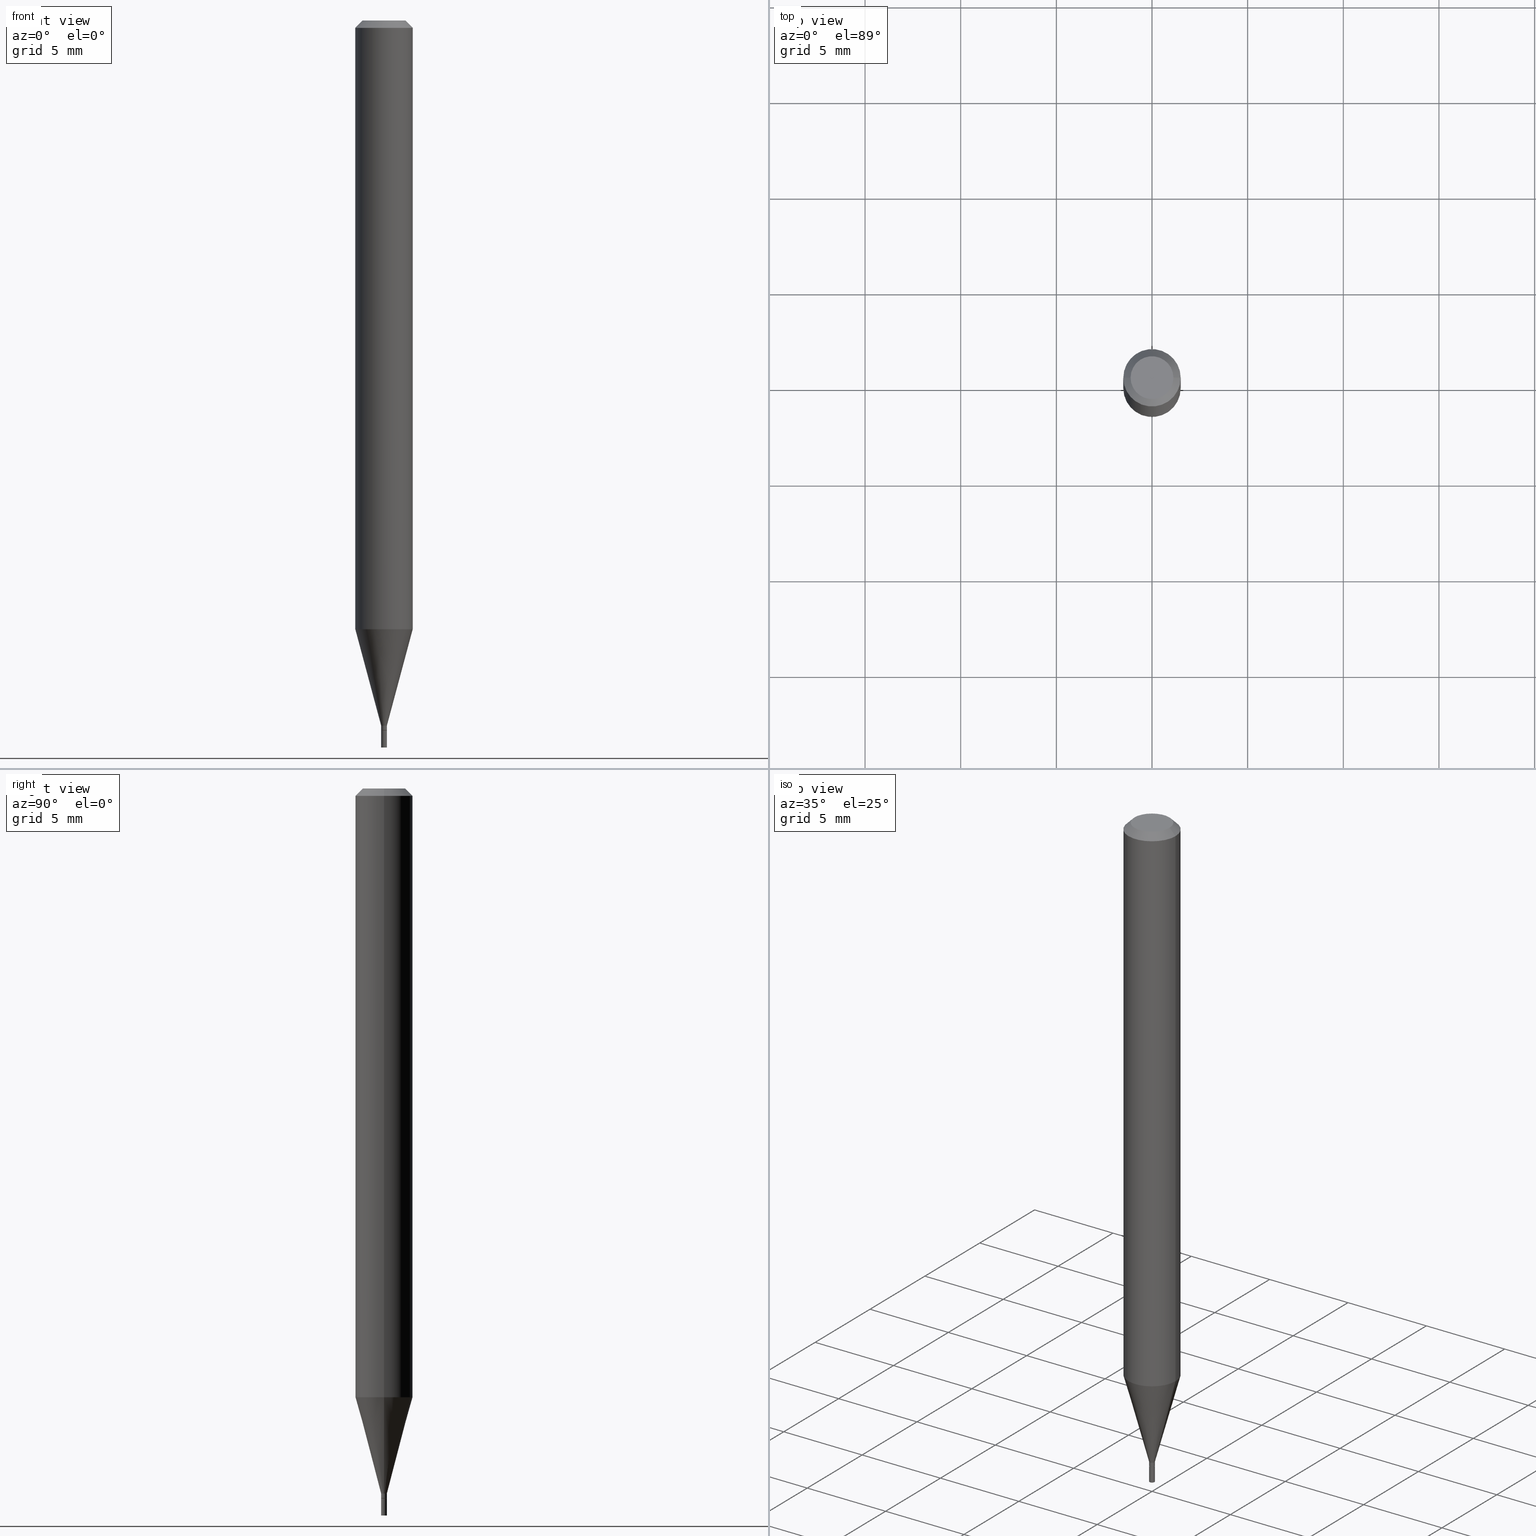
[diagram: canonical four-view strip — front | top / right | iso, engineering-drawing reading convention]
A machine part, canonical four-view strip (front | top / right | iso — engineering-drawing reading convention). The complete STEP part file that produces these views, byte-faithful:
ISO-10303-21;
HEADER;
FILE_DESCRIPTION (( 'STEP AP203' ),
    '1' );
FILE_NAME ('01824.STEP',
    '2024-03-20T01:40:50',
    ( '' ),
    ( '' ),
    'SwSTEP 2.0',
    'SolidWorks 2023',
    '' );
FILE_SCHEMA (( 'CONFIG_CONTROL_DESIGN' ));
ENDSEC;

DATA;
#1 = DIRECTION ( 'NONE',  ( -0.7071067811865965336, 2.468850131082771003E-15, -0.7071067811864982788 ) ) ;
#2 = FACE_OUTER_BOUND ( 'NONE', #51, .T. ) ;
#3 = CARTESIAN_POINT ( 'NONE',  ( 3.658665880933582389E-29, -5.223605231043229660E-15, -1.496099999999999985 ) ) ;
#4 = CYLINDRICAL_SURFACE ( 'NONE', #181, 0.005900000000000000730 ) ;
#5 = EDGE_CURVE ( 'NONE', #184, #374, #37, .T. ) ;
#6 = AXIS2_PLACEMENT_3D ( 'NONE', #250, #375, #126 ) ;
#7 = DIRECTION ( 'NONE',  ( -2.445468806185136597E-29, 3.491481338843145583E-15, 1.000000000000000000 ) ) ;
#8 = CIRCLE ( 'NONE', #38, 0.04404999999999999888 ) ;
#9 = DIRECTION ( 'NONE',  ( -2.445468806185136597E-29, 3.491481338843145583E-15, 1.000000000000000000 ) ) ;
#10 = PERSON_AND_ORGANIZATION_ROLE ( 'creator' ) ;
#11 = ORIENTED_EDGE ( 'NONE', *, *, #388, .T. ) ;
#12 = LINE ( 'NONE', #441, #28 ) ;
#13 = VECTOR ( 'NONE', #384, 39.37007874015748854 ) ;
#14 = ORIENTED_EDGE ( 'NONE', *, *, #5, .F. ) ;
#15 = EDGE_CURVE ( 'NONE', #84, #49, #425, .T. ) ;
#16 = ORIENTED_EDGE ( 'NONE', *, *, #212, .F. ) ;
#17 =( LENGTH_UNIT ( ) NAMED_UNIT ( * ) SI_UNIT ( $, .METRE. ) );
#18 = LINE ( 'NONE', #259, #432 ) ;
#19 = ORIENTED_EDGE ( 'NONE', *, *, #312, .T. ) ;
#20 = DIRECTION ( 'NONE',  ( 1.000000000000000000, -6.982962677686267499E-15, 4.876176775795935793E-29 ) ) ;
#21 = DIRECTION ( 'NONE',  ( 1.000000000000000000, -6.982962677686309309E-15, 0.000000000000000000 ) ) ;
#22 = ORIENTED_EDGE ( 'NONE', *, *, #306, .F. ) ;
#23 = CALENDAR_DATE ( 2024, 19, 3 ) ;
#24 = AXIS2_PLACEMENT_3D ( 'NONE', #171, #133, #43 ) ;
#25 = ORIENTED_EDGE ( 'NONE', *, *, #222, .T. ) ;
#26 = CARTESIAN_POINT ( 'NONE',  ( 0.005400000000000000286, -5.137714790107687740E-15, -1.460699999999999887 ) ) ;
#27 = DIRECTION ( 'NONE',  ( -2.445468806185136597E-29, 3.491481338843145583E-15, 1.000000000000000000 ) ) ;
#28 = VECTOR ( 'NONE', #149, 39.37007874015748143 ) ;
#29 = AXIS2_PLACEMENT_3D ( 'NONE', #3, #7, #106 ) ;
#30 = PRODUCT_DEFINITION ( 'UNKNOWN', '', #379, #417 ) ;
#31 = DIRECTION ( 'NONE',  ( 1.000000000000000000, -6.982962677686309309E-15, 0.000000000000000000 ) ) ;
#32 = CARTESIAN_POINT ( 'NONE',  ( 3.577647911566500614E-29, -5.339627574433336753E-15, -1.496099999999999985 ) ) ;
#33 = ORIENTED_EDGE ( 'NONE', *, *, #238, .T. ) ;
#34 = ADVANCED_FACE ( 'NONE', ( #234 ), #390, .T. ) ;
#35 = DIRECTION ( 'NONE',  ( -2.445468806185136877E-29, 3.491481338843145188E-15, 1.000000000000000000 ) ) ;
#36 = DIRECTION ( 'NONE',  ( -2.438088387897960049E-29, 3.491481338843145188E-15, 1.000000000000000000 ) ) ;
#37 = CIRCLE ( 'NONE', #162, 0.05904999999999999832 ) ;
#38 = AXIS2_PLACEMENT_3D ( 'NONE', #44, #141, #100 ) ;
#39 = CARTESIAN_POINT ( 'NONE',  ( 0.05904999999999999832, -4.647161662000212105E-16, -0.01499999999999999944 ) ) ;
#40 = DIRECTION ( 'NONE',  ( 1.000000000000000000, -6.982962677686266711E-15, 0.000000000000000000 ) ) ;
#41 = EDGE_CURVE ( 'NONE', #370, #309, #314, .T. ) ;
#42 = CYLINDRICAL_SURFACE ( 'NONE', #210, 0.005899999999999922667 ) ;
#43 = DIRECTION ( 'NONE',  ( 1.000000000000000000, -6.982962677686309309E-15, 0.000000000000000000 ) ) ;
#44 = CARTESIAN_POINT ( 'NONE',  ( 5.095808080209832944E-44, -7.275463409461209846E-30, -2.083775539201889035E-15 ) ) ;
#45 = DIRECTION ( 'NONE',  ( 1.000000000000000000, -6.982962677686266711E-15, 4.876176775795935793E-29 ) ) ;
#46 = PLANE ( 'NONE',  #137 ) ;
#47 = APPROVAL_PERSON_ORGANIZATION ( #363, #324, #322 ) ;
#48 = DIRECTION ( 'NONE',  ( 1.000000000000000000, -6.982962677686217012E-15, 0.000000000000000000 ) ) ;
#49 = VERTEX_POINT ( 'NONE', #242 ) ;
#50 = APPROVAL_PERSON_ORGANIZATION ( #57, #272, #143 ) ;
#51 = EDGE_LOOP ( 'NONE', ( #179, #79, #448, #262 ) ) ;
#52 = ADVANCED_FACE ( 'NONE', ( #233 ), #397, .T. ) ;
#53 = ORIENTED_EDGE ( 'NONE', *, *, #157, .T. ) ;
#54 = ORIENTED_EDGE ( 'NONE', *, *, #157, .F. ) ;
#55 = LENGTH_MEASURE_WITH_UNIT ( LENGTH_MEASURE( 0.02539999999999999897 ), #17 );
#56 = ORIENTED_EDGE ( 'NONE', *, *, #203, .T. ) ;
#57 = PERSON_AND_ORGANIZATION ( #297, #231 ) ;
#58 = CIRCLE ( 'NONE', #101, 0.005400000000000000286 ) ;
#59 = AXIS2_PLACEMENT_3D ( 'NONE', #160, #88, #332 ) ;
#60 = EDGE_CURVE ( 'NONE', #84, #252, #18, .T. ) ;
#61 = ORIENTED_EDGE ( 'NONE', *, *, #226, .F. ) ;
#62 = CARTESIAN_POINT ( 'NONE',  ( -0.05905000000000000526, -3.954348082703628668E-15, -1.252741499577714190 ) ) ;
#63 = DIRECTION ( 'NONE',  ( 1.000000000000000000, -6.982962677686265922E-15, 4.957392940945096353E-29 ) ) ;
#64 = AXIS2_PLACEMENT_3D ( 'NONE', #305, #424, #340 ) ;
#65 = LINE ( 'NONE', #427, #289 ) ;
#66 = CARTESIAN_POINT ( 'NONE',  ( 5.095808080209832944E-44, -7.275463409461209846E-30, -2.083775539201889035E-15 ) ) ;
#67 = CARTESIAN_POINT ( 'NONE',  ( 0.04404999999999999888, -3.798447818264496564E-16, -2.083775539201886668E-15 ) ) ;
#68 = CARTESIAN_POINT ( 'NONE',  ( 3.572096285194628524E-29, -5.100006791648181685E-15, -1.460699999999999887 ) ) ;
#69 = EDGE_CURVE ( 'NONE', #412, #374, #12, .T. ) ;
#70 = AXIS2_PLACEMENT_3D ( 'NONE', #337, #131, #202 ) ;
#71 = CIRCLE ( 'NONE', #125, 0.05904999999999999832 ) ;
#72 = CYLINDRICAL_SURFACE ( 'NONE', #296, 0.05904999999999999832 ) ;
#73 = DIRECTION ( 'NONE',  ( -0.7071067811865642261, 7.493145998870414114E-15, 0.7071067811865309194 ) ) ;
#74 = CC_DESIGN_DATE_AND_TIME_ASSIGNMENT ( #429, #449, ( #30 ) ) ;
#75 = FACE_OUTER_BOUND ( 'NONE', #300, .T. ) ;
#76 = DIRECTION ( 'NONE',  ( 1.000000000000000000, -6.982962677686309309E-15, 0.000000000000000000 ) ) ;
#77 = APPROVAL_DATE_TIME ( #399, #207 ) ;
#78 = CALENDAR_DATE ( 2024, 19, 3 ) ;
#79 = ORIENTED_EDGE ( 'NONE', *, *, #15, .T. ) ;
#80 = ORIENTED_EDGE ( 'NONE', *, *, #203, .F. ) ;
#81 = PLANE ( 'NONE',  #236 ) ;
#82 = EDGE_CURVE ( 'NONE', #309, #304, #465, .T. ) ;
#83 = ORIENTED_EDGE ( 'NONE', *, *, #312, .F. ) ;
#84 = VERTEX_POINT ( 'NONE', #187 ) ;
#85 = AXIS2_PLACEMENT_3D ( 'NONE', #307, #27, #164 ) ;
#86 = CIRCLE ( 'NONE', #276, 0.005900000000000000730 ) ;
#87 = ORIENTED_EDGE ( 'NONE', *, *, #238, .F. ) ;
#88 = DIRECTION ( 'NONE',  ( -2.445468806185136597E-29, 3.491481338843145583E-15, 1.000000000000000000 ) ) ;
#89 = APPLICATION_PROTOCOL_DEFINITION ( 'international standard', 'config_control_design', 1994, #99 ) ;
#90 =( NAMED_UNIT ( * ) PLANE_ANGLE_UNIT ( ) SI_UNIT ( $, .RADIAN. ) );
#91 = ORIENTED_EDGE ( 'NONE', *, *, #402, .T. ) ;
#92 = EDGE_LOOP ( 'NONE', ( #457, #456, #444, #96 ) ) ;
#93 = VECTOR ( 'NONE', #323, 39.37007874015748143 ) ;
#94 = ORIENTED_EDGE ( 'NONE', *, *, #175, .T. ) ;
#95 = DIRECTION ( 'NONE',  ( 0.2588190451025212391, 1.565188264969622362E-15, 0.9659258262890679791 ) ) ;
#96 = ORIENTED_EDGE ( 'NONE', *, *, #267, .F. ) ;
#97 = LINE ( 'NONE', #341, #295 ) ;
#98 = DIRECTION ( 'NONE',  ( 1.000000000000000000, -6.982962677686266711E-15, 0.000000000000000000 ) ) ;
#99 = APPLICATION_CONTEXT ( 'configuration controlled 3d designs of mechanical parts and assemblies' ) ;
#100 = DIRECTION ( 'NONE',  ( 1.000000000000000000, -6.982962677686265922E-15, 4.957392940945096353E-29 ) ) ;
#101 = AXIS2_PLACEMENT_3D ( 'NONE', #68, #426, #264 ) ;
#102 = CC_DESIGN_APPROVAL ( #324, ( #379 ) ) ;
#103 = CARTESIAN_POINT ( 'NONE',  ( 0.000000000000000000, 0.000000000000000000, 0.000000000000000000 ) ) ;
#104 = CARTESIAN_POINT ( 'NONE',  ( -0.005900000000000000730, -5.119883989935859251E-15, -1.460699999999999887 ) ) ;
#105 = ADVANCED_FACE ( 'NONE', ( #404 ), #81, .F. ) ;
#106 = DIRECTION ( 'NONE',  ( 1.000000000000000000, -6.982962677686217012E-15, 0.000000000000000000 ) ) ;
#107 = CLOSED_SHELL ( 'NONE', ( #454, #188, #422, #140 ) ) ;
#108 = CARTESIAN_POINT ( 'NONE',  ( -0.005400000000000000286, -5.061637483917135768E-15, -1.460699999999999887 ) ) ;
#109 = CC_DESIGN_APPROVAL ( #272, ( #30 ) ) ;
#110 = COORDINATED_UNIVERSAL_TIME_OFFSET ( 5, 0, .BEHIND. ) ;
#111 = ORIENTED_EDGE ( 'NONE', *, *, #306, .T. ) ;
#112 = DIRECTION ( 'NONE',  ( 1.000000000000000000, -6.982962677686217012E-15, 0.000000000000000000 ) ) ;
#113 = EDGE_CURVE ( 'NONE', #152, #291, #230, .T. ) ;
#114 = EDGE_LOOP ( 'NONE', ( #268, #182, #376, #123 ) ) ;
#115 = ORIENTED_EDGE ( 'NONE', *, *, #15, .F. ) ;
#116 = ORIENTED_EDGE ( 'NONE', *, *, #226, .T. ) ;
#117 = AXIS2_PLACEMENT_3D ( 'NONE', #260, #271, #279 ) ;
#118 = AXIS2_PLACEMENT_3D ( 'NONE', #211, #277, #433 ) ;
#119 = COORDINATED_UNIVERSAL_TIME_OFFSET ( 5, 0, .BEHIND. ) ;
#120 = DIRECTION ( 'NONE',  ( -2.445468806185136597E-29, 3.491481338843145583E-15, 1.000000000000000000 ) ) ;
#121 = ORIENTED_EDGE ( 'NONE', *, *, #393, .F. ) ;
#122 = ADVANCED_FACE ( 'NONE', ( #346 ), #320, .T. ) ;
#123 = ORIENTED_EDGE ( 'NONE', *, *, #175, .F. ) ;
#124 = DIRECTION ( 'NONE',  ( -2.445468806185136597E-29, 3.491481338843145583E-15, 1.000000000000000000 ) ) ;
#125 = AXIS2_PLACEMENT_3D ( 'NONE', #172, #247, #316 ) ;
#126 = DIRECTION ( 'NONE',  ( 1.000000000000000000, -6.982962677686309309E-15, 0.000000000000000000 ) ) ;
#127 = DIRECTION ( 'NONE',  ( 2.438088387897960049E-29, -3.491481338843145188E-15, -1.000000000000000000 ) ) ;
#128 = CONICAL_SURFACE ( 'NONE', #398, 0.05904999999999999832, 0.7853981633975177790 ) ;
#129 = ADVANCED_FACE ( 'NONE', ( #2 ), #209, .T. ) ;
#130 = CARTESIAN_POINT ( 'NONE',  ( -0.005400000000000000286, -5.058988256743024567E-15, -1.460699999999999887 ) ) ;
#131 = DIRECTION ( 'NONE',  ( -2.445468806185136597E-29, 3.491481338843145583E-15, 1.000000000000000000 ) ) ;
#132 = FACE_OUTER_BOUND ( 'NONE', #266, .T. ) ;
#133 = DIRECTION ( 'NONE',  ( -2.445468806185136597E-29, 3.491481338843145583E-15, 1.000000000000000000 ) ) ;
#134 = DIRECTION ( 'NONE',  ( -2.445468806185136597E-29, 3.491481338843145583E-15, 1.000000000000000000 ) ) ;
#135 = PRODUCT_RELATED_PRODUCT_CATEGORY ( 'detail', '', ( #285 ) ) ;
#136 = AXIS2_PLACEMENT_3D ( 'NONE', #354, #311, #45 ) ;
#137 = AXIS2_PLACEMENT_3D ( 'NONE', #241, #396, #455 ) ;
#138 = PLANE ( 'NONE',  #318 ) ;
#139 = CARTESIAN_POINT ( 'NONE',  ( 3.570873550791536843E-29, -5.098261050978760971E-15, -1.460199999999999942 ) ) ;
#140 = ADVANCED_FACE ( 'NONE', ( #173 ), #138, .F. ) ;
#141 = DIRECTION ( 'NONE',  ( -2.445468806185136597E-29, 3.491481338843145583E-15, 1.000000000000000000 ) ) ;
#142 = DIRECTION ( 'NONE',  ( -2.445468806185136877E-29, 3.491481338843145188E-15, 1.000000000000000000 ) ) ;
#143 = APPROVAL_ROLE ( '' ) ;
#144 = CARTESIAN_POINT ( 'NONE',  ( 3.572096285194628524E-29, -5.100006791648181685E-15, -1.460699999999999887 ) ) ;
#145 = DATE_AND_TIME ( #23, #169 ) ;
#146 = APPROVAL_DATE_TIME ( #325, #272 ) ;
#147 = AXIS2_PLACEMENT_3D ( 'NONE', #32, #36, #342 ) ;
#148 = CIRCLE ( 'NONE', #245, 0.005899999999999922667 ) ;
#149 = DIRECTION ( 'NONE',  ( -2.445468806185136877E-29, 3.491481338843145188E-15, 1.000000000000000000 ) ) ;
#150 = EDGE_CURVE ( 'NONE', #265, #253, #58, .T. ) ;
#151 = ORIENTED_EDGE ( 'NONE', *, *, #393, .T. ) ;
#152 = VERTEX_POINT ( 'NONE', #228 ) ;
#153 =( CONVERSION_BASED_UNIT ( 'INCH', #55 ) LENGTH_UNIT ( ) NAMED_UNIT ( #369 ) );
#154 = CARTESIAN_POINT ( 'NONE',  ( 3.075995059520799729E-16, 0.04404999999999999888, -1.195687522576985293E-15 ) ) ;
#155 = CARTESIAN_POINT ( 'NONE',  ( 3.668203209277705088E-31, -5.237222008264718399E-17, -0.01499999999999999944 ) ) ;
#156 = CYLINDRICAL_SURFACE ( 'NONE', #386, 0.005900000000000000730 ) ;
#157 = EDGE_CURVE ( 'NONE', #196, #186, #280, .T. ) ;
#158 = ORIENTED_EDGE ( 'NONE', *, *, #256, .T. ) ;
#159 = EDGE_CURVE ( 'NONE', #253, #265, #349, .T. ) ;
#160 = CARTESIAN_POINT ( 'NONE',  ( 3.063540259430890909E-29, -4.373923568169968161E-15, -1.252741499577714190 ) ) ;
#161 = DIRECTION ( 'NONE',  ( -2.445468806185136877E-29, 3.491481338843145188E-15, 1.000000000000000000 ) ) ;
#162 = AXIS2_PLACEMENT_3D ( 'NONE', #155, #464, #40 ) ;
#163 = CC_DESIGN_SECURITY_CLASSIFICATION ( #366, ( #379 ) ) ;
#164 = DIRECTION ( 'NONE',  ( 1.000000000000000000, -6.982962677686296687E-15, 0.000000000000000000 ) ) ;
#165 = CARTESIAN_POINT ( 'NONE',  ( 0.005400000000000000286, -5.137714790107687740E-15, -1.460699999999999887 ) ) ;
#166 = FACE_OUTER_BOUND ( 'NONE', #336, .T. ) ;
#167 = AXIS2_PLACEMENT_3D ( 'NONE', #66, #389, #63 ) ;
#168 = APPROVAL_PERSON_ORGANIZATION ( #410, #207, #357 ) ;
#169 = LOCAL_TIME ( 21, 40, 50.00000000000000000, #110 ) ;
#170 = CYLINDRICAL_SURFACE ( 'NONE', #191, 0.05904999999999999832 ) ;
#171 = CARTESIAN_POINT ( 'NONE',  ( 3.548619784655251556E-29, -5.066488570795288817E-15, -1.451100000000000056 ) ) ;
#172 = CARTESIAN_POINT ( 'NONE',  ( 3.063540259430890909E-29, -4.373923568169968161E-15, -1.252741499577714190 ) ) ;
#173 = FACE_OUTER_BOUND ( 'NONE', #381, .T. ) ;
#174 = CARTESIAN_POINT ( 'NONE',  ( 0.000000000000000000, 0.000000000000000000, 0.000000000000000000 ) ) ;
#175 = EDGE_CURVE ( 'NONE', #265, #291, #415, .T. ) ;
#176 = CONICAL_SURFACE ( 'NONE', #118, 0.005400000000000000286, 0.7853981633974718157 ) ;
#177 = DIRECTION ( 'NONE',  ( 1.000000000000000000, -6.982962677686266711E-15, 4.876176775795936353E-29 ) ) ;
#178 = LINE ( 'NONE', #108, #258 ) ;
#179 = ORIENTED_EDGE ( 'NONE', *, *, #60, .F. ) ;
#180 = ORIENTED_EDGE ( 'NONE', *, *, #113, .F. ) ;
#181 = AXIS2_PLACEMENT_3D ( 'NONE', #103, #239, #240 ) ;
#182 = ORIENTED_EDGE ( 'NONE', *, *, #371, .T. ) ;
#183 = ORIENTED_EDGE ( 'NONE', *, *, #159, .F. ) ;
#184 = VERTEX_POINT ( 'NONE', #345 ) ;
#185 = EDGE_LOOP ( 'NONE', ( #331, #158, #407, #215 ) ) ;
#186 = VERTEX_POINT ( 'NONE', #67 ) ;
#187 = CARTESIAN_POINT ( 'NONE',  ( -0.005899999999999922667, -4.489457316044536124E-15, -1.451100000000000056 ) ) ;
#188 = ADVANCED_FACE ( 'NONE', ( #197 ), #347, .F. ) ;
#189 = APPROVAL_STATUS ( 'not_yet_approved' ) ;
#190 = AXIS2_PLACEMENT_3D ( 'NONE', #329, #120, #21 ) ;
#191 = AXIS2_PLACEMENT_3D ( 'NONE', #353, #204, #177 ) ;
#192 = LINE ( 'NONE', #387, #451 ) ;
#193 = CARTESIAN_POINT ( 'NONE',  ( 3.548619784655251556E-29, -5.066488570795288817E-15, -1.451100000000000056 ) ) ;
#194 = CIRCLE ( 'NONE', #199, 0.005900000000000000730 ) ;
#195 = DIRECTION ( 'NONE',  ( 0.7071067811865642261, -2.468850131082431399E-15, 0.7071067811865309194 ) ) ;
#196 = VERTEX_POINT ( 'NONE', #463 ) ;
#197 = FACE_OUTER_BOUND ( 'NONE', #447, .T. ) ;
#198 = DIRECTION ( 'NONE',  ( -2.445468806185136597E-29, 3.491481338843145583E-15, 1.000000000000000000 ) ) ;
#199 = AXIS2_PLACEMENT_3D ( 'NONE', #144, #9, #48 ) ;
#200 = CC_DESIGN_PERSON_AND_ORGANIZATION_ASSIGNMENT ( #261, #10, ( #379 ) ) ;
#201 = DIRECTION ( 'NONE',  ( 1.000000000000000000, -6.982962677686266711E-15, 4.876176775795936353E-29 ) ) ;
#202 = DIRECTION ( 'NONE',  ( 1.000000000000000000, -6.982962677686309309E-15, 0.000000000000000000 ) ) ;
#203 = EDGE_CURVE ( 'NONE', #252, #184, #428, .T. ) ;
#204 = DIRECTION ( 'NONE',  ( -2.445468806185136597E-29, 3.491481338843145583E-15, 1.000000000000000000 ) ) ;
#205 = CALENDAR_DATE ( 2024, 19, 3 ) ;
#206 = CARTESIAN_POINT ( 'NONE',  ( 0.05905000000000000526, -4.786267514287342293E-15, -1.252741499577714190 ) ) ;
#207 = APPROVAL ( #452, 'UNSPECIFIED' ) ;
#208 = PERSON_AND_ORGANIZATION ( #297, #231 ) ;
#209 = CONICAL_SURFACE ( 'NONE', #24, 0.005899999999999922667, 0.2617993877991499629 ) ;
#210 = AXIS2_PLACEMENT_3D ( 'NONE', #174, #321, #440 ) ;
#211 = CARTESIAN_POINT ( 'NONE',  ( 3.572096285194628524E-29, -5.100006791648181685E-15, -1.460699999999999887 ) ) ;
#212 = EDGE_CURVE ( 'NONE', #374, #184, #385, .T. ) ;
#213 = SHAPE_DEFINITION_REPRESENTATION ( #251, #436 ) ;
#214 = DATE_TIME_ROLE ( 'classification_date' ) ;
#215 = ORIENTED_EDGE ( 'NONE', *, *, #41, .F. ) ;
#216 = DIRECTION ( 'NONE',  ( 2.438088387897960049E-29, -3.491481338843145188E-15, -1.000000000000000000 ) ) ;
#217 = EDGE_LOOP ( 'NONE', ( #80, #11, #450, #14 ) ) ;
#218 = ORIENTED_EDGE ( 'NONE', *, *, #159, .T. ) ;
#219 = SECURITY_CLASSIFICATION_LEVEL ( 'unclassified' ) ;
#220 = ORIENTED_EDGE ( 'NONE', *, *, #222, .F. ) ;
#221 = DIRECTION ( 'NONE',  ( -1.000000000000000000, 6.982962677686265922E-15, -4.876176775795935793E-29 ) ) ;
#222 = EDGE_CURVE ( 'NONE', #196, #184, #192, .T. ) ;
#223 = EDGE_LOOP ( 'NONE', ( #293, #33, #333, #220 ) ) ;
#224 = DIRECTION ( 'NONE',  ( 0.000000000000000000, 0.000000000000000000, 1.000000000000000000 ) ) ;
#225 = UNCERTAINTY_MEASURE_WITH_UNIT (LENGTH_MEASURE( 1.000000000000000082E-05 ), #153, 'distance_accuracy_value', 'NONE');
#226 = EDGE_CURVE ( 'NONE', #291, #49, #97, .T. ) ;
#227 = ORIENTED_EDGE ( 'NONE', *, *, #356, .F. ) ;
#228 = CARTESIAN_POINT ( 'NONE',  ( -0.005899999999999922667, -5.056339029568914944E-15, -1.460199999999999942 ) ) ;
#229 = COORDINATED_UNIVERSAL_TIME_OFFSET ( 5, 0, .BEHIND. ) ;
#230 = CIRCLE ( 'NONE', #70, 0.005899999999999922667 ) ;
#231 = ORGANIZATION ( 'UNSPECIFIED', 'UNSPECIFIED', '' ) ;
#232 = ADVANCED_FACE ( 'NONE', ( #166 ), #466, .T. ) ;
#233 = FACE_OUTER_BOUND ( 'NONE', #92, .T. ) ;
#234 = FACE_OUTER_BOUND ( 'NONE', #364, .T. ) ;
#235 = CARTESIAN_POINT ( 'NONE',  ( 0.005900000000000000730, -5.141206271446529958E-15, -1.460699999999999887 ) ) ;
#236 = AXIS2_PLACEMENT_3D ( 'NONE', #154, #216, #221 ) ;
#237 = AXIS2_PLACEMENT_3D ( 'NONE', #335, #224, #445 ) ;
#238 = EDGE_CURVE ( 'NONE', #186, #374, #270, .T. ) ;
#239 = DIRECTION ( 'NONE',  ( -2.445468806185136597E-29, 3.491481338843145583E-15, 1.000000000000000000 ) ) ;
#240 = DIRECTION ( 'NONE',  ( 1.000000000000000000, -6.982962677686267499E-15, 4.876176775795935793E-29 ) ) ;
#241 = CARTESIAN_POINT ( 'NONE',  ( 3.572096285194628524E-29, -5.100006791648181685E-15, -1.460699999999999887 ) ) ;
#242 = CARTESIAN_POINT ( 'NONE',  ( 0.005899999999999922667, -5.107688050593637090E-15, -1.451100000000000056 ) ) ;
#243 = PERSON_AND_ORGANIZATION_ROLE ( 'classification_officer' ) ;
#244 = VECTOR ( 'NONE', #142, 39.37007874015748143 ) ;
#245 = AXIS2_PLACEMENT_3D ( 'NONE', #139, #134, #76 ) ;
#246 = PERSON_AND_ORGANIZATION ( #297, #231 ) ;
#247 = DIRECTION ( 'NONE',  ( -2.445468806185136597E-29, 3.491481338843145583E-15, 1.000000000000000000 ) ) ;
#248 = ORIENTED_EDGE ( 'NONE', *, *, #442, .T. ) ;
#249 = CALENDAR_DATE ( 2024, 19, 3 ) ;
#250 = CARTESIAN_POINT ( 'NONE',  ( 3.548619784655251556E-29, -5.066488570795288817E-15, -1.451100000000000056 ) ) ;
#251 = PRODUCT_DEFINITION_SHAPE ( 'NONE', 'NONE',  #30 ) ;
#252 = VERTEX_POINT ( 'NONE', #62 ) ;
#253 = VERTEX_POINT ( 'NONE', #130 ) ;
#254 = ORIENTED_EDGE ( 'NONE', *, *, #113, .T. ) ;
#255 = APPROVAL_DATE_TIME ( #145, #324 ) ;
#256 = EDGE_CURVE ( 'NONE', #338, #304, #65, .T. ) ;
#257 = VECTOR ( 'NONE', #458, 39.37007874015748143 ) ;
#258 = VECTOR ( 'NONE', #73, 39.37007874015748143 ) ;
#259 = CARTESIAN_POINT ( 'NONE',  ( -0.005899999999999922667, -5.024566549385442790E-15, -1.451100000000000056 ) ) ;
#260 = CARTESIAN_POINT ( 'NONE',  ( 3.668203209277705088E-31, -5.237222008264718399E-17, -0.01499999999999999944 ) ) ;
#261 = PERSON_AND_ORGANIZATION ( #297, #231 ) ;
#262 = ORIENTED_EDGE ( 'NONE', *, *, #388, .F. ) ;
#263 = PERSON_AND_ORGANIZATION_ROLE ( 'design_owner' ) ;
#264 = DIRECTION ( 'NONE',  ( 1.000000000000000000, -6.982962677686296687E-15, 0.000000000000000000 ) ) ;
#265 = VERTEX_POINT ( 'NONE', #26 ) ;
#266 = EDGE_LOOP ( 'NONE', ( #419, #151, #298, #22 ) ) ;
#267 = EDGE_CURVE ( 'NONE', #49, #412, #303, .T. ) ;
#268 = ORIENTED_EDGE ( 'NONE', *, *, #150, .T. ) ;
#269 = CC_DESIGN_APPROVAL ( #207, ( #366 ) ) ;
#270 = LINE ( 'NONE', #273, #13 ) ;
#271 = DIRECTION ( 'NONE',  ( 2.445468806185136597E-29, -3.491481338843145583E-15, -1.000000000000000000 ) ) ;
#272 = APPROVAL ( #189, 'UNSPECIFIED' ) ;
#273 = CARTESIAN_POINT ( 'NONE',  ( 0.05904999999999999832, -4.574846268510561447E-16, -0.01499999999999999944 ) ) ;
#274 = EDGE_CURVE ( 'NONE', #49, #84, #281, .T. ) ;
#275 = DIRECTION ( 'NONE',  ( -1.000000000000000000, 6.982962677686265922E-15, -4.876176775795935793E-29 ) ) ;
#276 = AXIS2_PLACEMENT_3D ( 'NONE', #394, #358, #350 ) ;
#277 = DIRECTION ( 'NONE',  ( -2.445468806185136597E-29, 3.491481338843145583E-15, 1.000000000000000000 ) ) ;
#278 = CARTESIAN_POINT ( 'NONE',  ( 0.005900000000000000730, -5.264804710841577933E-15, -1.496099999999999985 ) ) ;
#279 = DIRECTION ( 'NONE',  ( -1.000000000000000000, 6.982962677686266711E-15, 0.000000000000000000 ) ) ;
#280 = CIRCLE ( 'NONE', #167, 0.04404999999999999888 ) ;
#281 = CIRCLE ( 'NONE', #319, 0.005899999999999922667 ) ;
#282 = DIRECTION ( 'NONE',  ( -1.000000000000000000, 6.982962677686266711E-15, 0.000000000000000000 ) ) ;
#283 = ADVANCED_FACE ( 'NONE', ( #430 ), #170, .T. ) ;
#284 = FACE_OUTER_BOUND ( 'NONE', #223, .T. ) ;
#285 = PRODUCT ( '01824', '01824', '', ( #361 ) ) ;
#286 = PERSON_AND_ORGANIZATION ( #297, #231 ) ;
#287 = LINE ( 'NONE', #391, #93 ) ;
#288 = VECTOR ( 'NONE', #195, 39.37007874015748143 ) ;
#289 = VECTOR ( 'NONE', #161, 39.37007874015748143 ) ;
#290 = CARTESIAN_POINT ( 'NONE',  ( 3.572096285194628524E-29, -5.100006791648181685E-15, -1.460699999999999887 ) ) ;
#291 = VERTEX_POINT ( 'NONE', #438 ) ;
#292 = EDGE_CURVE ( 'NONE', #186, #196, #8, .T. ) ;
#293 = ORIENTED_EDGE ( 'NONE', *, *, #292, .F. ) ;
#294 = COORDINATED_UNIVERSAL_TIME_OFFSET ( 5, 0, .BEHIND. ) ;
#295 = VECTOR ( 'NONE', #35, 39.37007874015748143 ) ;
#296 = AXIS2_PLACEMENT_3D ( 'NONE', #401, #198, #201 ) ;
#297 = PERSON ( 'UNSPECIFIED', 'UNSPECIFIED', 'UNSPECIFIED', ('UNSPECIFIED'), ('UNSPECIFIED'), ('UNSPECIFIED') ) ;
#298 = ORIENTED_EDGE ( 'NONE', *, *, #41, .T. ) ;
#299 = CARTESIAN_POINT ( 'NONE',  ( 3.668203209277705088E-31, -5.237222008264718399E-17, -0.01499999999999999944 ) ) ;
#300 = EDGE_LOOP ( 'NONE', ( #409, #183 ) ) ;
#301 = AXIS2_PLACEMENT_3D ( 'NONE', #290, #446, #112 ) ;
#302 = LOCAL_TIME ( 21, 40, 50.00000000000000000, #400 ) ;
#303 = LINE ( 'NONE', #460, #326 ) ;
#304 = VERTEX_POINT ( 'NONE', #104 ) ;
#305 = CARTESIAN_POINT ( 'NONE',  ( 3.572096285194628524E-29, -5.100006791648181685E-15, -1.460699999999999887 ) ) ;
#306 = EDGE_CURVE ( 'NONE', #304, #309, #194, .T. ) ;
#307 = CARTESIAN_POINT ( 'NONE',  ( 3.572096285194628524E-29, -5.100006791648181685E-15, -1.460699999999999887 ) ) ;
#308 = CC_DESIGN_DATE_AND_TIME_ASSIGNMENT ( #365, #214, ( #366 ) ) ;
#309 = VERTEX_POINT ( 'NONE', #235 ) ;
#310 = CLOSED_SHELL ( 'NONE', ( #348, #383, #344, #416, #52, #129, #283, #34, #105, #434, #232, #122 ) ) ;
#311 = DIRECTION ( 'NONE',  ( -2.445468806185136597E-29, 3.491481338843145583E-15, 1.000000000000000000 ) ) ;
#312 = EDGE_CURVE ( 'NONE', #152, #84, #287, .T. ) ;
#313 = CARTESIAN_POINT ( 'NONE',  ( -0.005900000000000000730, -5.119883989935859251E-15, -1.496099999999999985 ) ) ;
#314 = LINE ( 'NONE', #395, #244 ) ;
#315 = CARTESIAN_POINT ( 'NONE',  ( 3.668203209277705088E-31, -5.237222008264718399E-17, -0.01499999999999999944 ) ) ;
#316 = DIRECTION ( 'NONE',  ( 1.000000000000000000, -6.982962677686273021E-15, 0.000000000000000000 ) ) ;
#317 = CARTESIAN_POINT ( 'NONE',  ( -0.05904999999999999832, 4.195754854663391478E-16, -2.904631170795521892E-30 ) ) ;
#318 = AXIS2_PLACEMENT_3D ( 'NONE', #435, #127, #275 ) ;
#319 = AXIS2_PLACEMENT_3D ( 'NONE', #193, #343, #31 ) ;
#320 = CYLINDRICAL_SURFACE ( 'NONE', #136, 0.005899999999999922667 ) ;
#321 = DIRECTION ( 'NONE',  ( -2.445468806185136597E-29, 3.491481338843145583E-15, 1.000000000000000000 ) ) ;
#322 = APPROVAL_ROLE ( '' ) ;
#323 = DIRECTION ( 'NONE',  ( -2.445468806185136877E-29, 3.491481338843145188E-15, 1.000000000000000000 ) ) ;
#324 = APPROVAL ( #414, 'UNSPECIFIED' ) ;
#325 = DATE_AND_TIME ( #78, #302 ) ;
#326 = VECTOR ( 'NONE', #95, 39.37007874015748854 ) ;
#327 =( NAMED_UNIT ( * ) SI_UNIT ( $, .STERADIAN. ) SOLID_ANGLE_UNIT ( ) );
#328 = CARTESIAN_POINT ( 'NONE',  ( 0.000000000000000000, 0.000000000000000000, 0.000000000000000000 ) ) ;
#329 = CARTESIAN_POINT ( 'NONE',  ( 3.548619784655251556E-29, -5.066488570795288817E-15, -1.451100000000000056 ) ) ;
#330 = PERSON_AND_ORGANIZATION_ROLE ( 'design_supplier' ) ;
#331 = ORIENTED_EDGE ( 'NONE', *, *, #356, .T. ) ;
#332 = DIRECTION ( 'NONE',  ( 1.000000000000000000, -6.982962677686273021E-15, 0.000000000000000000 ) ) ;
#333 = ORIENTED_EDGE ( 'NONE', *, *, #212, .T. ) ;
#334 = ORIENTED_EDGE ( 'NONE', *, *, #371, .F. ) ;
#335 = CARTESIAN_POINT ( 'NONE',  ( 0.000000000000000000, 0.000000000000000000, 0.000000000000000000 ) ) ;
#336 = EDGE_LOOP ( 'NONE', ( #334, #218, #94, #180 ) ) ;
#337 = CARTESIAN_POINT ( 'NONE',  ( 3.570873550791536843E-29, -5.098261050978760971E-15, -1.460199999999999942 ) ) ;
#338 = VERTEX_POINT ( 'NONE', #313 ) ;
#339 = LOCAL_TIME ( 21, 40, 50.00000000000000000, #229 ) ;
#340 = DIRECTION ( 'NONE',  ( 1.000000000000000000, -6.982962677686296687E-15, 0.000000000000000000 ) ) ;
#341 = CARTESIAN_POINT ( 'NONE',  ( 0.005899999999999922667, -4.119947979834843332E-17, 2.876944297719564290E-31 ) ) ;
#342 = DIRECTION ( 'NONE',  ( 1.000000000000000000, -6.982962677686265922E-15, 4.876176775795935793E-29 ) ) ;
#343 = DIRECTION ( 'NONE',  ( -2.445468806185136597E-29, 3.491481338843145583E-15, 1.000000000000000000 ) ) ;
#344 = ADVANCED_FACE ( 'NONE', ( #284 ), #128, .T. ) ;
#345 = CARTESIAN_POINT ( 'NONE',  ( -0.05904999999999999832, -1.793572408659968325E-15, -0.01499999999999999944 ) ) ;
#346 = FACE_OUTER_BOUND ( 'NONE', #405, .T. ) ;
#347 = PLANE ( 'NONE',  #147 ) ;
#348 = ADVANCED_FACE ( 'NONE', ( #392 ), #42, .T. ) ;
#349 = CIRCLE ( 'NONE', #85, 0.005400000000000000286 ) ;
#350 = DIRECTION ( 'NONE',  ( 1.000000000000000000, -6.982962677686217012E-15, 0.000000000000000000 ) ) ;
#351 = LOCAL_TIME ( 21, 40, 50.00000000000000000, #119 ) ;
#352 = DIRECTION ( 'NONE',  ( 2.445468806185136597E-29, -3.491481338843145583E-15, -1.000000000000000000 ) ) ;
#353 = CARTESIAN_POINT ( 'NONE',  ( 0.000000000000000000, 0.000000000000000000, 0.000000000000000000 ) ) ;
#354 = CARTESIAN_POINT ( 'NONE',  ( 0.000000000000000000, 0.000000000000000000, 0.000000000000000000 ) ) ;
#355 = FACE_OUTER_BOUND ( 'NONE', #114, .T. ) ;
#356 = EDGE_CURVE ( 'NONE', #370, #338, #86, .T. ) ;
#357 = APPROVAL_ROLE ( '' ) ;
#358 = DIRECTION ( 'NONE',  ( -2.445468806185136597E-29, 3.491481338843145583E-15, 1.000000000000000000 ) ) ;
#359 = DIRECTION ( 'NONE',  ( -0.2588190451025212391, 5.211531920934549464E-15, 0.9659258262890679791 ) ) ;
#360 = CC_DESIGN_PERSON_AND_ORGANIZATION_ASSIGNMENT ( #286, #243, ( #366 ) ) ;
#361 = MECHANICAL_CONTEXT ( 'NONE', #421, 'mechanical' ) ;
#362 = DIRECTION ( 'NONE',  ( -2.445468806185136597E-29, 3.491481338843145583E-15, 1.000000000000000000 ) ) ;
#363 = PERSON_AND_ORGANIZATION ( #297, #231 ) ;
#364 = EDGE_LOOP ( 'NONE', ( #87, #54, #25, #461 ) ) ;
#365 = DATE_AND_TIME ( #406, #378 ) ;
#366 = SECURITY_CLASSIFICATION ( '', '', #219 ) ;
#367 = ORIENTED_EDGE ( 'NONE', *, *, #274, .F. ) ;
#368 = EDGE_LOOP ( 'NONE', ( #91, #19, #367, #61 ) ) ;
#369 = DIMENSIONAL_EXPONENTS ( 1.000000000000000000, 0.000000000000000000, 0.000000000000000000, 0.000000000000000000, 0.000000000000000000, 0.000000000000000000, 0.000000000000000000 ) ;
#370 = VERTEX_POINT ( 'NONE', #278 ) ;
#371 = EDGE_CURVE ( 'NONE', #253, #152, #178, .T. ) ;
#372 = FACE_OUTER_BOUND ( 'NONE', #185, .T. ) ;
#373 = CC_DESIGN_PERSON_AND_ORGANIZATION_ASSIGNMENT ( #246, #263, ( #285 ) ) ;
#374 = VERTEX_POINT ( 'NONE', #39 ) ;
#375 = DIRECTION ( 'NONE',  ( -2.445468806185136597E-29, 3.491481338843145583E-15, 1.000000000000000000 ) ) ;
#376 = ORIENTED_EDGE ( 'NONE', *, *, #402, .F. ) ;
#377 = PERSON_AND_ORGANIZATION ( #297, #231 ) ;
#378 = LOCAL_TIME ( 21, 40, 50.00000000000000000, #294 ) ;
#379 = PRODUCT_DEFINITION_FORMATION_WITH_SPECIFIED_SOURCE ( 'ANY', '', #285, .NOT_KNOWN. ) ;
#380 = CC_DESIGN_PERSON_AND_ORGANIZATION_ASSIGNMENT ( #377, #423, ( #30 ) ) ;
#381 = EDGE_LOOP ( 'NONE', ( #418, #111 ) ) ;
#382 = ORIENTED_EDGE ( 'NONE', *, *, #292, .T. ) ;
#383 = ADVANCED_FACE ( 'NONE', ( #355 ), #176, .T. ) ;
#384 = DIRECTION ( 'NONE',  ( 0.7071067811865965336, -7.319954787623421706E-15, -0.7071067811864982788 ) ) ;
#385 = CIRCLE ( 'NONE', #408, 0.05904999999999999832 ) ;
#386 = AXIS2_PLACEMENT_3D ( 'NONE', #328, #362, #20 ) ;
#387 = CARTESIAN_POINT ( 'NONE',  ( -0.05904999999999999832, 3.599717260347268549E-16, -0.01499999999999999944 ) ) ;
#388 = EDGE_CURVE ( 'NONE', #252, #412, #71, .T. ) ;
#389 = DIRECTION ( 'NONE',  ( -2.445468806185136597E-29, 3.491481338843145583E-15, 1.000000000000000000 ) ) ;
#390 = CONICAL_SURFACE ( 'NONE', #117, 0.05904999999999999832, 0.7853981633975177790 ) ;
#391 = CARTESIAN_POINT ( 'NONE',  ( -0.005899999999999922667, 4.192202140984536149E-17, -2.902171703250356410E-31 ) ) ;
#392 = FACE_OUTER_BOUND ( 'NONE', #368, .T. ) ;
#393 = EDGE_CURVE ( 'NONE', #338, #370, #459, .T. ) ;
#394 = CARTESIAN_POINT ( 'NONE',  ( 3.658665880933582389E-29, -5.223605231043229660E-15, -1.496099999999999985 ) ) ;
#395 = CARTESIAN_POINT ( 'NONE',  ( 0.005900000000000000730, -4.119947979834898183E-17, 2.876944297719602388E-31 ) ) ;
#396 = DIRECTION ( 'NONE',  ( -2.438088387897960049E-29, 3.491481338843145188E-15, 1.000000000000000000 ) ) ;
#397 = CONICAL_SURFACE ( 'NONE', #190, 0.005899999999999922667, 0.2617993877991499629 ) ;
#398 = AXIS2_PLACEMENT_3D ( 'NONE', #315, #352, #282 ) ;
#399 = DATE_AND_TIME ( #249, #351 ) ;
#400 = COORDINATED_UNIVERSAL_TIME_OFFSET ( 5, 0, .BEHIND. ) ;
#401 = CARTESIAN_POINT ( 'NONE',  ( 0.000000000000000000, 0.000000000000000000, 0.000000000000000000 ) ) ;
#402 = EDGE_CURVE ( 'NONE', #291, #152, #148, .T. ) ;
#403 = EDGE_LOOP ( 'NONE', ( #248, #56, #16, #413 ) ) ;
#404 = FACE_OUTER_BOUND ( 'NONE', #443, .T. ) ;
#405 = EDGE_LOOP ( 'NONE', ( #83, #254, #116, #115 ) ) ;
#406 = CALENDAR_DATE ( 2024, 19, 3 ) ;
#407 = ORIENTED_EDGE ( 'NONE', *, *, #82, .F. ) ;
#408 = AXIS2_PLACEMENT_3D ( 'NONE', #299, #124, #98 ) ;
#409 = ORIENTED_EDGE ( 'NONE', *, *, #150, .F. ) ;
#410 = PERSON_AND_ORGANIZATION ( #297, #231 ) ;
#411 = CIRCLE ( 'NONE', #59, 0.05904999999999999832 ) ;
#412 = VERTEX_POINT ( 'NONE', #206 ) ;
#413 = ORIENTED_EDGE ( 'NONE', *, *, #69, .F. ) ;
#414 = APPROVAL_STATUS ( 'not_yet_approved' ) ;
#415 = LINE ( 'NONE', #165, #288 ) ;
#416 = ADVANCED_FACE ( 'NONE', ( #437 ), #72, .T. ) ;
#417 = DESIGN_CONTEXT ( 'detailed design', #99, 'design' ) ;
#418 = ORIENTED_EDGE ( 'NONE', *, *, #82, .T. ) ;
#419 = ORIENTED_EDGE ( 'NONE', *, *, #256, .F. ) ;
#420 = MANIFOLD_SOLID_BREP ( 'Body-Move/Copy2[2]', #310 ) ;
#421 = APPLICATION_CONTEXT ( 'configuration controlled 3d designs of mechanical parts and assemblies' ) ;
#422 = ADVANCED_FACE ( 'NONE', ( #132 ), #4, .T. ) ;
#423 = PERSON_AND_ORGANIZATION_ROLE ( 'creator' ) ;
#424 = DIRECTION ( 'NONE',  ( -2.445468806185136597E-29, 3.491481338843145583E-15, 1.000000000000000000 ) ) ;
#425 = CIRCLE ( 'NONE', #6, 0.005899999999999922667 ) ;
#426 = DIRECTION ( 'NONE',  ( -2.445468806185136597E-29, 3.491481338843145583E-15, 1.000000000000000000 ) ) ;
#427 = CARTESIAN_POINT ( 'NONE',  ( -0.005900000000000000730, 4.192202140984591615E-17, -2.902171703250394508E-31 ) ) ;
#428 = LINE ( 'NONE', #317, #257 ) ;
#429 = DATE_AND_TIME ( #205, #339 ) ;
#430 = FACE_OUTER_BOUND ( 'NONE', #217, .T. ) ;
#431 = MANIFOLD_SOLID_BREP ( 'Body-Move/Copy2[1]', #107 ) ;
#432 = VECTOR ( 'NONE', #359, 39.37007874015748854 ) ;
#433 = DIRECTION ( 'NONE',  ( 1.000000000000000000, -6.982962677686296687E-15, 0.000000000000000000 ) ) ;
#434 = ADVANCED_FACE ( 'NONE', ( #75 ), #46, .F. ) ;
#435 = CARTESIAN_POINT ( 'NONE',  ( 4.119947979838469011E-17, 0.005899999999994900643, -1.460699999999999887 ) ) ;
#436 = ADVANCED_BREP_SHAPE_REPRESENTATION ( '01824', ( #431, #420, #237 ), #453 ) ;
#437 = FACE_OUTER_BOUND ( 'NONE', #403, .T. ) ;
#438 = CARTESIAN_POINT ( 'NONE',  ( 0.005899999999999922667, -5.139460530777109244E-15, -1.460199999999999942 ) ) ;
#439 = APPLICATION_PROTOCOL_DEFINITION ( 'international standard', 'config_control_design', 1994, #421 ) ;
#440 = DIRECTION ( 'NONE',  ( 1.000000000000000000, -6.982962677686266711E-15, 4.876176775795935793E-29 ) ) ;
#441 = CARTESIAN_POINT ( 'NONE',  ( 0.05904999999999999832, -4.123439461173740327E-16, 2.879382386107500220E-30 ) ) ;
#442 = EDGE_CURVE ( 'NONE', #412, #252, #411, .T. ) ;
#443 = EDGE_LOOP ( 'NONE', ( #53, #382 ) ) ;
#444 = ORIENTED_EDGE ( 'NONE', *, *, #442, .F. ) ;
#445 = DIRECTION ( 'NONE',  ( 1.000000000000000000, 0.000000000000000000, 0.000000000000000000 ) ) ;
#446 = DIRECTION ( 'NONE',  ( -2.445468806185136597E-29, 3.491481338843145583E-15, 1.000000000000000000 ) ) ;
#447 = EDGE_LOOP ( 'NONE', ( #227, #121 ) ) ;
#448 = ORIENTED_EDGE ( 'NONE', *, *, #267, .T. ) ;
#449 = DATE_TIME_ROLE ( 'creation_date' ) ;
#450 = ORIENTED_EDGE ( 'NONE', *, *, #69, .T. ) ;
#451 = VECTOR ( 'NONE', #1, 39.37007874015748854 ) ;
#452 = APPROVAL_STATUS ( 'not_yet_approved' ) ;
#453 =( GEOMETRIC_REPRESENTATION_CONTEXT ( 3 ) GLOBAL_UNCERTAINTY_ASSIGNED_CONTEXT ( ( #225 ) ) GLOBAL_UNIT_ASSIGNED_CONTEXT ( ( #153, #90, #327 ) ) REPRESENTATION_CONTEXT ( 'NONE', 'WORKASPACE' ) );
#454 = ADVANCED_FACE ( 'NONE', ( #372 ), #156, .T. ) ;
#455 = DIRECTION ( 'NONE',  ( 1.000000000000000000, -6.982962677686265922E-15, 4.876176775795935793E-29 ) ) ;
#456 = ORIENTED_EDGE ( 'NONE', *, *, #60, .T. ) ;
#457 = ORIENTED_EDGE ( 'NONE', *, *, #274, .T. ) ;
#458 = DIRECTION ( 'NONE',  ( -2.445468806185136877E-29, 3.491481338843145188E-15, 1.000000000000000000 ) ) ;
#459 = CIRCLE ( 'NONE', #29, 0.005900000000000000730 ) ;
#460 = CARTESIAN_POINT ( 'NONE',  ( 0.005899999999999922667, -5.107688050593637090E-15, -1.451100000000000056 ) ) ;
#461 = ORIENTED_EDGE ( 'NONE', *, *, #5, .T. ) ;
#462 = CC_DESIGN_PERSON_AND_ORGANIZATION_ASSIGNMENT ( #208, #330, ( #379 ) ) ;
#463 = CARTESIAN_POINT ( 'NONE',  ( -0.04404999999999999888, 3.337856159933997654E-16, -2.083775539201891401E-15 ) ) ;
#464 = DIRECTION ( 'NONE',  ( -2.445468806185136597E-29, 3.491481338843145583E-15, 1.000000000000000000 ) ) ;
#465 = CIRCLE ( 'NONE', #301, 0.005900000000000000730 ) ;
#466 = CONICAL_SURFACE ( 'NONE', #64, 0.005400000000000000286, 0.7853981633974718157 ) ;
ENDSEC;
END-ISO-10303-21;
